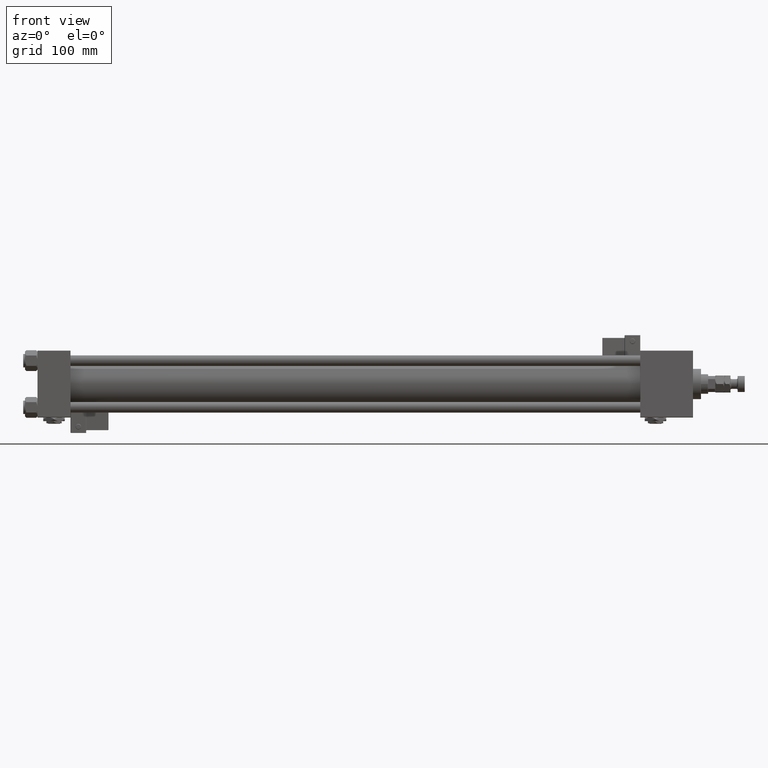
[diagram: clean part render]
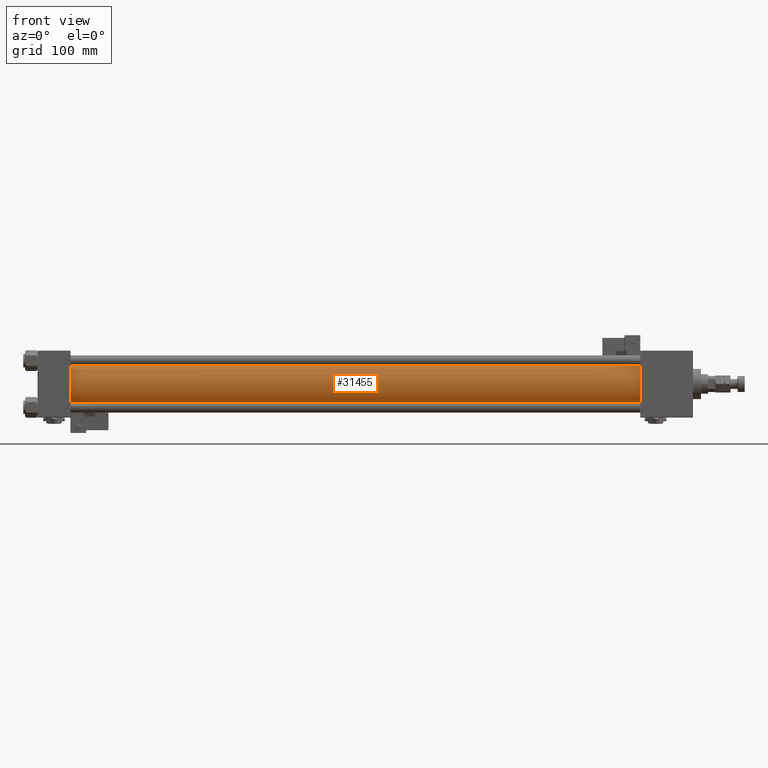
[diagram: same view with one face highlighted and labeled with its STEP entity id]
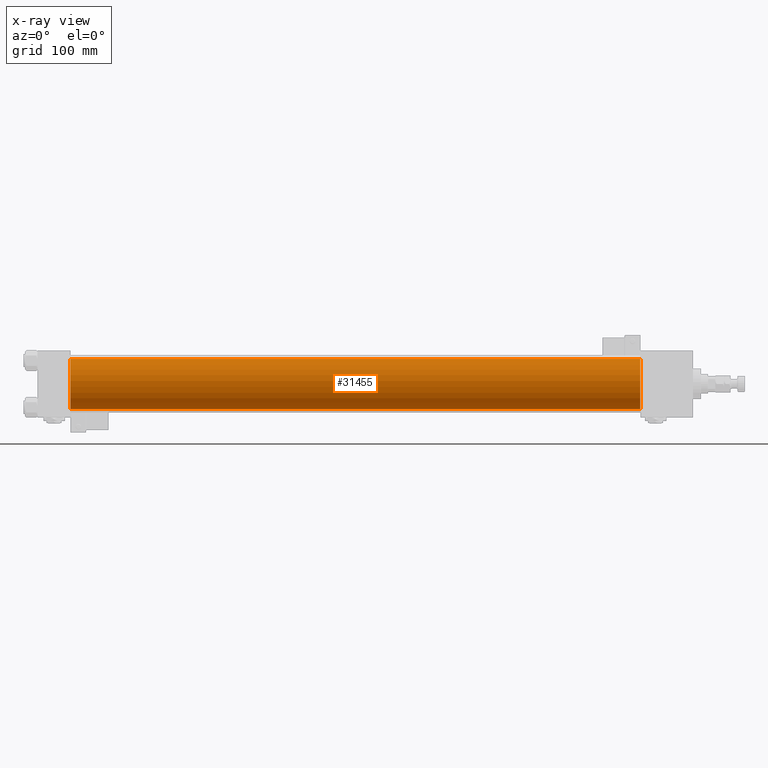
[diagram: x-ray of the same camera — body ghosted, the highlighted face saturated]
A machine part, front view. The second image highlights one B-rep face of the part: STEP entity #31455.
The next image is the same camera in x-ray: the body ghosted, the highlighted face saturated — about 0% of this face is hidden behind the body in this view.
In plain terms, the highlighted cylindrical surface (edge-blend (fillet) strip) has radius 28 mm, axis along (-1, -0, -0).
Its self-contained STEP definition (entity closure, byte-faithful):
#1060 = CARTESIAN_POINT ( 'NONE',  ( 675.0000000000000000, -2.602085213965210642E-15, 0.000000000000000000 ) ) ;
#1161 = EDGE_CURVE ( 'NONE', #22071, #36793, #23969, .T. ) ;
#2127 = CIRCLE ( 'NONE', #39370, 28.00000000000000000 ) ;
#2380 = CARTESIAN_POINT ( 'NONE',  ( 675.0000000000000000, -2.602085213965210642E-15, 0.000000000000000000 ) ) ;
#2787 = CARTESIAN_POINT ( 'NONE',  ( 37.00000000000003553, 8.269258236473784371E-16, -28.00000000000000000 ) ) ;
#3212 = DIRECTION ( 'NONE',  ( 1.000000000000000000, -0.000000000000000000, 0.000000000000000000 ) ) ;
#5615 = DIRECTION ( 'NONE',  ( 0.000000000000000000, 0.000000000000000000, -1.000000000000000000 ) ) ;
#8432 = CARTESIAN_POINT ( 'NONE',  ( 675.0000000000000000, 8.269258236473784371E-16, -28.00000000000000000 ) ) ;
#10338 = CARTESIAN_POINT ( 'NONE',  ( 675.0000000000000000, -2.602085213965210642E-15, 28.00000000000000000 ) ) ;
#10891 = FACE_OUTER_BOUND ( 'NONE', #28588, .T. ) ;
#10945 = EDGE_CURVE ( 'NONE', #31902, #53722, #2127, .T. ) ;
#11535 = CARTESIAN_POINT ( 'NONE',  ( 37.00000000000003553, -2.602085213965210642E-15, 28.00000000000000000 ) ) ;
#15733 = AXIS2_PLACEMENT_3D ( 'NONE', #1060, #26400, #5615 ) ;
#16021 = CARTESIAN_POINT ( 'NONE',  ( 675.0000000000000000, -2.602085213965210642E-15, 28.00000000000000000 ) ) ;
#16695 = LINE ( 'NONE', #8432, #38224 ) ;
#17716 = CARTESIAN_POINT ( 'NONE',  ( 675.0000000000000000, 8.269258236473784371E-16, -28.00000000000000000 ) ) ;
#21822 = DIRECTION ( 'NONE',  ( -1.000000000000000000, -0.000000000000000000, -0.000000000000000000 ) ) ;
#22071 = VERTEX_POINT ( 'NONE', #10338 ) ;
#22174 = EDGE_CURVE ( 'NONE', #22071, #31902, #41935, .T. ) ;
#23969 = CIRCLE ( 'NONE', #15733, 28.00000000000000000 ) ;
#24291 = DIRECTION ( 'NONE',  ( 0.000000000000000000, 0.000000000000000000, 1.000000000000000000 ) ) ;
#24304 = DIRECTION ( 'NONE',  ( -1.000000000000000000, -0.000000000000000000, -0.000000000000000000 ) ) ;
#25420 = ORIENTED_EDGE ( 'NONE', *, *, #22174, .T. ) ;
#25704 = ORIENTED_EDGE ( 'NONE', *, *, #1161, .F. ) ;
#26400 = DIRECTION ( 'NONE',  ( 1.000000000000000000, 0.000000000000000000, 0.000000000000000000 ) ) ;
#28588 = EDGE_LOOP ( 'NONE', ( #33756, #25704, #25420, #36088 ) ) ;
#29932 = EDGE_CURVE ( 'NONE', #36793, #53722, #16695, .T. ) ;
#31455 = ADVANCED_FACE ( 'NONE', ( #10891 ), #45619, .T. ) ;
#31902 = VERTEX_POINT ( 'NONE', #11535 ) ;
#33756 = ORIENTED_EDGE ( 'NONE', *, *, #29932, .F. ) ;
#36088 = ORIENTED_EDGE ( 'NONE', *, *, #10945, .T. ) ;
#36793 = VERTEX_POINT ( 'NONE', #17716 ) ;
#38224 = VECTOR ( 'NONE', #21822, 1000.000000000000000 ) ;
#39370 = AXIS2_PLACEMENT_3D ( 'NONE', #40213, #3212, #54714 ) ;
#40213 = CARTESIAN_POINT ( 'NONE',  ( 37.00000000000003553, -2.602085213965210642E-15, 0.000000000000000000 ) ) ;
#41935 = LINE ( 'NONE', #16021, #47002 ) ;
#41969 = AXIS2_PLACEMENT_3D ( 'NONE', #2380, #54443, #24291 ) ;
#45619 = CYLINDRICAL_SURFACE ( 'NONE', #41969, 28.00000000000000000 ) ;
#47002 = VECTOR ( 'NONE', #24304, 1000.000000000000000 ) ;
#53722 = VERTEX_POINT ( 'NONE', #2787 ) ;
#54443 = DIRECTION ( 'NONE',  ( -1.000000000000000000, -0.000000000000000000, -0.000000000000000000 ) ) ;
#54714 = DIRECTION ( 'NONE',  ( 0.000000000000000000, 0.000000000000000000, 1.000000000000000000 ) ) ;